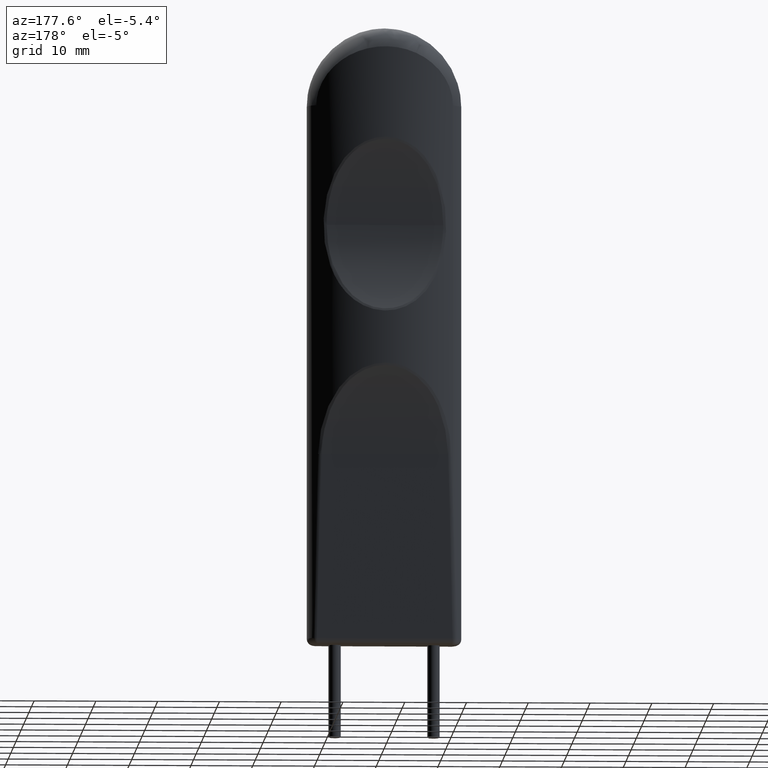
[diagram: clean part render]
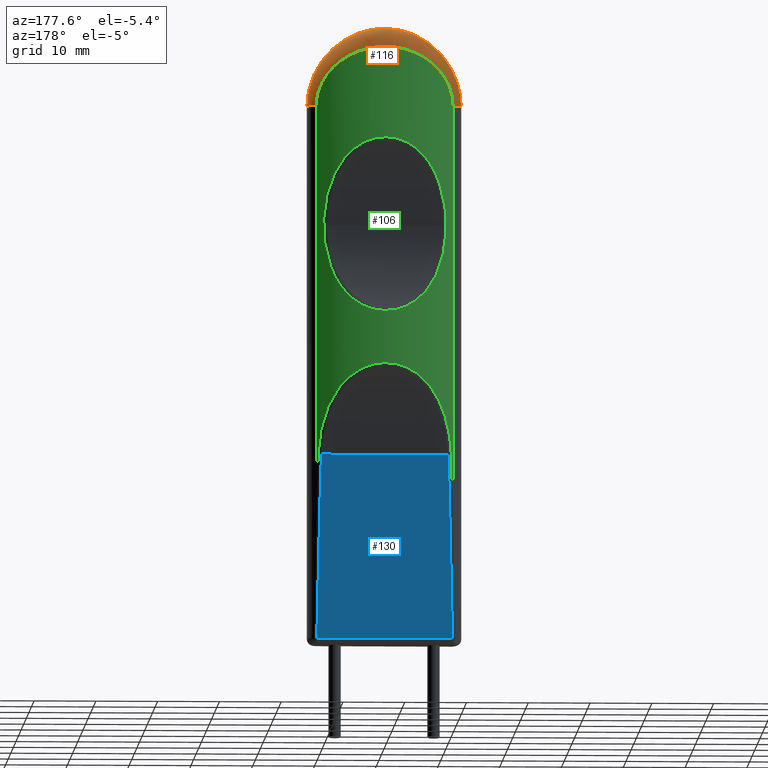
[diagram: same view with three faces highlighted in distinct colors, each labeled with its STEP entity id]
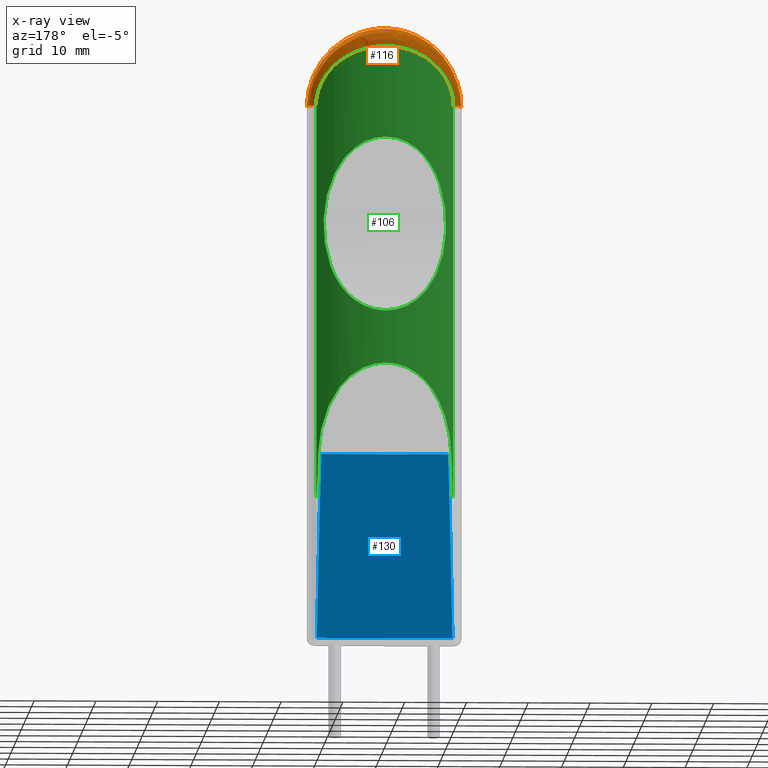
[diagram: x-ray of the same camera — body ghosted, the three highlighted faces saturated]
A machine part, auxiliary view with three faces highlighted in distinct colors.
The next image is the same camera in x-ray (body ghosted, the three faces saturated) — at least one of them is partly hidden behind the body in this view.
Their STEP definitions:

[orange] entity #116 — the highlighted face is a freeform B-spline surface patch.
#116=ADVANCED_FACE('NONE',(#263),#264,.T.);
#263=FACE_OUTER_BOUND('',#752,.T.);
#264=(B_SPLINE_SURFACE(3,2,((#754,#755,#756),(#757,#758,#759),(#760,#761,#762),(#763,#764,#765),(#766,#767,#768),(#769,#770,#771),(#772,#773,#774),(#775,#776,#777),(#778,#779,#780),(#781,#782,#783),(#784,#785,#786),(#787,#788,#789),(#790,#791,#792),(#793,#794,#795),(#796,#797,#798),(#799,#800,#801),(#802,#803,#804),(#805,#806,#807),(#808,#809,#810),(#811,#812,#813),(#814,#815,#816),(#817,#818,#819),(#820,#821,#822),(#823,#824,#825),(#826,#827,#828),(#829,#830,#831),(#832,#833,#834),(#835,#836,#837),(#838,#839,#840),(#841,#842,#843),(#844,#845,#846),(#847,#848,#849),(#850,#851,#852),(#853,#854,#855),(#856,#857,#858),(#859,#860,#861),(#862,#863,#864),(#865,#866,#867),(#868,#869,#870),(#871,#872,#873),(#874,#875,#876),(#877,#878,#879),(#880,#881,#882),(#883,#884,#885),(#886,#887,#888),(#889,#890,#891),(#892,#893,#894),(#895,#896,#897),(#898,#899,#900),(#901,#902,#903)),.UNSPECIFIED.,.F.,.F.,.F.)B_SPLINE_SURFACE_WITH_KNOTS((4,2,2,2,2,2,2,2,2,2,2,2,2,2,2,2,2,2,2,2,2,2,2,2,4),(3,3),(4.33680868994202E-019,0.00185581353227993,0.0027837202984199,0.00371162706455987,0.0055674405968398,0.00742325412911973,0.0083511608952597,0.00927906766139967,0.0111348811936796,0.0120627879598196,0.0129906947259595,0.0148465082582395,0.0157744150243794,0.0167023217905194,0.0176302285566594,0.0185581353227993,0.0204139488550793,0.0213418556212192,0.0222697623873592,0.0231976691534992,0.0241255759196391,0.0259813894519191,0.026909296218059,0.027837202984199,0.0296930165164789),(0.0,1.0),.UNSPECIFIED.)RATIONAL_B_SPLINE_SURFACE(((1.0,0.881354477089505,1.0),(1.0,0.881350704842463,1.0),(1.0,0.879210961076711,1.0),(1.0,0.873111829568949,1.0),(1.0,0.870596192241215,1.0),(1.0,0.864636514222427,1.0),(1.0,0.861232134745143,1.0),(1.0,0.8499715736576,1.0),(1.0,0.841043785469857,1.0),(1.0,0.821084455046986,1.0),(1.0,0.810274152130937,1.0),(1.0,0.793692625480911,1.0),(1.0,0.788097253600619,1.0),(1.0,0.776910120393579,1.0),(1.0,0.771299581266812,1.0),(1.0,0.755057765443363,1.0),(1.0,0.744904365497372,1.0),(1.0,0.731727931150032,1.0),(1.0,0.727680122794906,1.0),(1.0,0.720479977009014,1.0),(1.0,0.717373261118113,1.0),(1.0,0.709842852193457,1.0),(1.0,0.707151779630925,1.0),(1.0,0.707085124523978,1.0),(1.0,0.707736348010405,1.0),(1.0,0.71031336503987,1.0),(1.0,0.712232371543387,1.0),(1.0,0.717208710696827,1.0),(1.0,0.72026596900322,1.0),(1.0,0.727388720255791,1.0),(1.0,0.731474240029753,1.0),(1.0,0.744725050866888,1.0),(1.0,0.754930593230877,1.0),(1.0,0.771213155948768,1.0),(1.0,0.776825137060805,1.0),(1.0,0.788013807653119,1.0),(1.0,0.793611776311477,1.0),(1.0,0.804674534809966,1.0),(1.0,0.810139712143041,1.0),(1.0,0.820810814764776,1.0),(1.0,0.82603700838565,1.0),(1.0,0.841000951242173,1.0),(1.0,0.849902344181396,1.0),(1.0,0.861119366720008,1.0),(1.0,0.864502309306318,1.0),(1.0,0.870452828757397,1.0),(1.0,0.873025812735064,1.0),(1.0,0.879205377223568,1.0),(1.0,0.881351061532081,1.0),(1.0,0.881354477089505,1.0)))BOUNDED_SURFACE()REPRESENTATION_ITEM('')GEOMETRIC_REPRESENTATION_ITEM()SURFACE());
#752=EDGE_LOOP('',(#2164,#2165,#2166,#2167,#2168));
#754=CARTESIAN_POINT('',(-12.5,1.58676851449892E-015,-12.5));
#755=CARTESIAN_POINT('',(-12.5,1.71538005574047,-12.5));
#756=CARTESIAN_POINT('',(-11.0714285714286,2.66496544373966,-12.5));
#757=CARTESIAN_POINT('',(-12.5,1.05939245184682E-009,-11.6547701359437));
#758=CARTESIAN_POINT('',(-12.4999999982459,1.71538005713813,-11.7318884724107));
#759=CARTESIAN_POINT('',(-11.071428569529,2.66496544500235,-11.8711489811357));
#760=CARTESIAN_POINT('',(-12.4151995764906,0.0424844794774554,-10.8281563662107));
#761=CARTESIAN_POINT('',(-12.4302795858096,1.77175492873632,-10.9771605651087));
#762=CARTESIAN_POINT('',(-10.9963196245076,2.71554220449848,-11.2561483364682));
#763=CARTESIAN_POINT('',(-12.1692509058882,0.160671831186035,-9.61384463264329));
#764=CARTESIAN_POINT('',(-12.2282397263254,1.92873670906657,-9.86755203782147));
#765=CARTESIAN_POINT('',(-10.7784793739787,2.85624143350878,-10.3527004066829));
#766=CARTESIAN_POINT('',(-12.0673080935622,0.209128735203996,-9.21335388186144));
#767=CARTESIAN_POINT('',(-12.1438914017037,1.99359221154092,-9.49891680751395));
#768=CARTESIAN_POINT('',(-10.6881871685343,2.91392822336744,-10.0547352880568));
#769=CARTESIAN_POINT('',(-11.822944708723,0.322459750503041,-8.42079103926923));
#770=CARTESIAN_POINT('',(-11.9408800821349,2.14604370507022,-8.76586950761681));
#771=CARTESIAN_POINT('',(-10.4717510277754,3.04884609947737,-9.46506853326438));
#772=CARTESIAN_POINT('',(-11.6821311168871,0.386564613739911,-8.03418233428805));
#773=CARTESIAN_POINT('',(-11.8231278397489,2.23290365436741,-8.40584056115617));
#774=CARTESIAN_POINT('',(-10.3470304173024,3.12516141207975,-9.17743165680766));
#775=CARTESIAN_POINT('',(-11.2091556384823,0.595407860840227,-6.90824810149925));
#776=CARTESIAN_POINT('',(-11.4234126019707,2.51921137438881,-7.34531849405002));
#777=CARTESIAN_POINT('',(-9.92810928082236,3.37378432648812,-8.33973658732074));
#778=CARTESIAN_POINT('',(-10.8260093833532,0.757053513654279,-6.19904126623899));
#779=CARTESIAN_POINT('',(-11.0951633972024,2.74422821262874,-6.66760404331574));
#780=CARTESIAN_POINT('',(-9.58875116785294,3.566219625628,-7.81208670192692));
#781=CARTESIAN_POINT('',(-9.92344069771056,1.10441481350851,-4.85605567445496));
#782=CARTESIAN_POINT('',(-10.3071505089861,3.23839294064293,-5.35727304509205));
#783=CARTESIAN_POINT('',(-8.78933318966067,3.97974498466417,-6.81290542194938));
#784=CARTESIAN_POINT('',(-9.41383612047129,1.2861418177226,-4.23764700089086));
#785=CARTESIAN_POINT('',(-9.8513283215439,3.50389871335815,-4.73809721061688));
#786=CARTESIAN_POINT('',(-8.33796913495253,4.19608665435345,-6.3528093685895));
#787=CARTESIAN_POINT('',(-8.56854005459968,1.55407138276584,-3.39015267806505));
#788=CARTESIAN_POINT('',(-9.07886637849408,3.9046656004902,-3.87025024319391));
#789=CARTESIAN_POINT('',(-7.58927833423502,4.51505042370317,-5.72227359251704));
#790=CARTESIAN_POINT('',(-8.27284715955683,1.64276868278538,-3.12065837077217));
#791=CARTESIAN_POINT('',(-8.80266274428491,4.04043602913388,-3.58793573150463));
#792=CARTESIAN_POINT('',(-7.32737891273107,4.62064244651653,-5.52176982766771));
#793=CARTESIAN_POINT('',(-7.65222073565852,1.8167696819489,-2.60780270435777));
#794=CARTESIAN_POINT('',(-8.21326965687462,4.31143064062209,-3.04153876419844));
#795=CARTESIAN_POINT('',(-6.77768122303109,4.82778649421789,-5.14020521222897));
#796=CARTESIAN_POINT('',(-7.32597117364659,1.90233994576665,-2.36376424112101));
#797=CARTESIAN_POINT('',(-7.8982872704888,4.44706725533932,-2.77699213547001));
#798=CARTESIAN_POINT('',(-6.48871732504655,4.92965585501699,-4.95864059548055));
#799=CARTESIAN_POINT('',(-6.32152689740802,2.14566844227195,-1.68608240867082));
#800=CARTESIAN_POINT('',(-6.90385699079049,4.84274414378981,-2.02361362999005));
#801=CARTESIAN_POINT('',(-5.59906668092798,5.21933263761983,-4.45444531187806));
#802=CARTESIAN_POINT('',(-5.61268327555714,2.29173194844584,-1.30125114143163));
#803=CARTESIAN_POINT('',(-6.18366855982941,5.08725406425814,-1.5832792311975));
#804=CARTESIAN_POINT('',(-4.97123375839533,5.39321776242645,-4.16813084874457));
#805=CARTESIAN_POINT('',(-4.48647446674037,2.47647456205975,-0.825772220547606));
#806=CARTESIAN_POINT('',(-5.00330486679059,5.40581572894882,-1.02312557590484));
#807=CARTESIAN_POINT('',(-3.97373452766197,5.61314944663754,-3.8143745323277));
#808=CARTESIAN_POINT('',(-4.10051030996055,2.53232599362748,-0.684378236175469));
#809=CARTESIAN_POINT('',(-4.5899443069602,5.50431565801735,-0.852763515560458));
#810=CARTESIAN_POINT('',(-3.6318805603289,5.67963924515758,-3.70917740726896));
#811=CARTESIAN_POINT('',(-3.30575187608465,2.63062766039192,-0.437864741198617));
#812=CARTESIAN_POINT('',(-3.72511433293295,5.68034856474802,-0.551198950723308));
#813=CARTESIAN_POINT('',(-2.92795166159685,5.79666503996387,-3.52577136789734));
#814=CARTESIAN_POINT('',(-2.90119889070772,2.67246242063357,-0.334282214862693));
#815=CARTESIAN_POINT('',(-3.27903269918535,5.75632824468276,-0.42268118854885));
#816=CARTESIAN_POINT('',(-2.56963330316665,5.84646832533763,-3.44870596793834));
#817=CARTESIAN_POINT('',(-1.68331492420185,2.77320714388715,-0.0861759400997287));
#818=CARTESIAN_POINT('',(-1.91464316860528,5.94206398892687,-0.110205493307298));
#819=CARTESIAN_POINT('',(-1.49093607578488,5.9664025200131,-3.26411489927319));
#820=CARTESIAN_POINT('',(-0.85880907576333,2.80833959172239,-0.00143697773054034));
#821=CARTESIAN_POINT('',(-0.980452891961259,6.0078196533511,-0.00184413982428408));
#822=CARTESIAN_POINT('',(-0.760659467105444,6.00822686208451,-3.20106911087103));
#823=CARTESIAN_POINT('',(0.39764006061438,2.80921625318119,0.000691582658870562));
#824=CARTESIAN_POINT('',(0.45400558140523,6.00946653738431,0.000887623582717121));
#825=CARTESIAN_POINT('',(0.352195482258841,6.00927050723675,-3.19948546278205));
#826=CARTESIAN_POINT('',(0.821803487467541,2.80066958287997,-0.0200232263054182));
#827=CARTESIAN_POINT('',(0.937418273408349,5.99342268005277,-0.0256782892680005));
#828=CARTESIAN_POINT('',(0.727883088881617,5.99909589981109,-3.21489728064632));
#829=CARTESIAN_POINT('',(1.65477910811116,2.76663301974319,-0.102948441370066));
#830=CARTESIAN_POINT('',(1.88309094302562,5.9298368828133,-0.13151106146642));
#831=CARTESIAN_POINT('',(1.4656614957738,5.95857618126723,-3.27659364010424));
#832=CARTESIAN_POINT('',(2.0659739332485,2.74122849006832,-0.164953168578566));
#833=CARTESIAN_POINT('',(2.3464551794631,5.88268217874846,-0.210136022860053));
#834=CARTESIAN_POINT('',(1.82986262659401,5.92833269403709,-3.32272515751087));
#835=CARTESIAN_POINT('',(2.87817096796914,2.67467398119413,-0.328814334447042));
#836=CARTESIAN_POINT('',(3.25351672649427,5.76036342394839,-0.415865783680011));
#837=CARTESIAN_POINT('',(2.5492371430559,5.84910113542134,-3.44463786474018));
#838=CARTESIAN_POINT('',(3.27917233980773,2.6335214102971,-0.430673103360799));
#839=CARTESIAN_POINT('',(3.69591501228261,5.68558315580769,-0.542311698066729));
#840=CARTESIAN_POINT('',(2.90440978674734,5.80010997998556,-3.52042078881551));
#841=CARTESIAN_POINT('',(4.07110028699484,2.53633055688612,-0.674275268494996));
#842=CARTESIAN_POINT('',(4.55825522252091,5.51141980224759,-0.84051932981209));
#843=CARTESIAN_POINT('',(3.60583168270637,5.68440658271188,-3.7016607998452));
#844=CARTESIAN_POINT('',(4.46334436880627,2.4799993101419,-0.816785590402317));
#845=CARTESIAN_POINT('',(4.97864255244341,5.4120020200047,-1.01234980874918));
#846=CARTESIAN_POINT('',(3.95324786947354,5.61734557533954,-3.80768847955047));
#847=CARTESIAN_POINT('',(5.60014109569023,2.2943079734854,-1.29445729609209));
#848=CARTESIAN_POINT('',(6.17075685666689,5.09162648577381,-1.57539786021376));
#849=CARTESIAN_POINT('',(4.96012497054966,5.39628445883656,-4.16307622771022));
#850=CARTESIAN_POINT('',(6.31315294546806,2.14753703512286,-1.68101870677637));
#851=CARTESIAN_POINT('',(6.89542367941397,4.84583975627154,-2.0178783698254));
#852=CARTESIAN_POINT('',(5.59164975202046,5.22155715296242,-4.45067791774382));
#853=CARTESIAN_POINT('',(7.32087747686154,1.90365280939284,-2.36003860693838));
#854=CARTESIAN_POINT('',(7.89333741181982,4.44916224775175,-2.7729265344908));
#855=CARTESIAN_POINT('',(6.48420576506013,4.93121878788337,-4.95586872361106));
#856=CARTESIAN_POINT('',(7.64735618298445,1.8180747475955,-2.60403804210683));
#857=CARTESIAN_POINT('',(8.20859838685541,4.31348741833033,-3.03748063756583));
#858=CARTESIAN_POINT('',(6.77337261923828,4.82934014379413,-5.13740430350893));
#859=CARTESIAN_POINT('',(8.26836555395092,1.64408306081502,-3.11670363210577));
#860=CARTESIAN_POINT('',(8.79845358252963,4.0424597161648,-3.58376913119982));
#861=CARTESIAN_POINT('',(7.32340949061877,4.62220718226915,-5.51882750210525));
#862=CARTESIAN_POINT('',(8.56432032415289,1.55536192905462,-3.38617394607395));
#863=CARTESIAN_POINT('',(9.07494397731242,3.90663069267071,-3.86610341434167));
#864=CARTESIAN_POINT('',(7.58554085870149,4.51658678833073,-5.71931341591042));
#865=CARTESIAN_POINT('',(9.12847465150288,1.37663783207852,-3.95129492304309));
#866=CARTESIAN_POINT('',(9.59410121621046,3.63742068344218,-4.4488544117113));
#867=CARTESIAN_POINT('',(8.08522040545078,4.30382000525947,-6.13976342271265));
#868=CARTESIAN_POINT('',(9.39667211743717,1.28662922465869,-4.24694446899944));
#869=CARTESIAN_POINT('',(9.83730852891626,3.50395307471976,-4.74912093467417));
#870=CARTESIAN_POINT('',(8.32276673292686,4.19666690210365,-6.35972668484369));
#871=CARTESIAN_POINT('',(9.90567052107101,1.10759479316285,-4.8653379899052));
#872=CARTESIAN_POINT('',(10.2926988243052,3.24233932648846,-5.36827872298259));
#873=CARTESIAN_POINT('',(8.77359388975181,3.98353067325846,-6.81981146458135));
#874=CARTESIAN_POINT('',(10.147369119002,1.01821519634579,-5.18943671583498));
#875=CARTESIAN_POINT('',(10.5062166235418,3.11353191811713,-5.68846601922286));
#876=CARTESIAN_POINT('',(8.98766979121176,3.8771263922965,-7.06094091668076));
#877=CARTESIAN_POINT('',(10.8241280094678,0.757815042935291,-6.19587475450557));
#878=CARTESIAN_POINT('',(11.0935465750186,2.74529328344625,-6.66456404873635));
#879=CARTESIAN_POINT('',(9.5870848081943,3.56712620808655,-7.80973081715307));
#880=CARTESIAN_POINT('',(11.2061707712024,0.596658222186654,-6.9029346324606));
#881=CARTESIAN_POINT('',(11.4208845130899,2.52093246621259,-7.34029894968574));
#882=CARTESIAN_POINT('',(9.92546554113323,3.37527285190629,-8.33578336639151));
#883=CARTESIAN_POINT('',(11.6774323027921,0.388672528734882,-8.02211815316966));
#884=CARTESIAN_POINT('',(11.819195078088,2.23576402139357,-8.39458951718285));
#885=CARTESIAN_POINT('',(10.3428686105817,3.12767083468993,-9.16845590603782));
#886=CARTESIAN_POINT('',(11.817402402123,0.32499185758378,-8.40502184789766));
#887=CARTESIAN_POINT('',(11.9362590753779,2.14946415044874,-8.75122598282044));
#888=CARTESIAN_POINT('',(10.4668421282774,3.05186051262601,-9.45333625471238));
#889=CARTESIAN_POINT('',(12.0614675217911,0.21187404110825,-9.19230490814583));
#890=CARTESIAN_POINT('',(12.1390567894194,1.99726988021943,-9.47952396332998));
#891=CARTESIAN_POINT('',(10.6830140900465,2.91719644472477,-10.039074851784));
#892=CARTESIAN_POINT('',(12.1657715375485,0.162332612533008,-9.59870926830839));
#893=CARTESIAN_POINT('',(12.2253659228344,1.93095529221393,-9.8536422719306));
#894=CARTESIAN_POINT('',(10.7753976476619,2.85821855416448,-10.3414396956307));
#895=CARTESIAN_POINT('',(12.4149953962294,0.0426044856736884,-10.8231489731924));
#896=CARTESIAN_POINT('',(12.4301041041006,1.77191910337873,-10.9725559009975));
#897=CARTESIAN_POINT('',(10.9961387792797,2.71568506900872,-11.2524228360368));
#898=CARTESIAN_POINT('',(12.5,8.82967321348278E-010,-11.6538734095813));
#899=CARTESIAN_POINT('',(12.4999999985487,1.71538005690491,-11.7310663009534));
#900=CARTESIAN_POINT('',(11.0714285698534,2.66496544478672,-11.8704818167416));
#901=CARTESIAN_POINT('',(12.5,1.04787643248766E-015,-12.5));
#902=CARTESIAN_POINT('',(12.5,1.71538005574047,-12.5));
#903=CARTESIAN_POINT('',(11.0714285714286,2.66496544373966,-12.5));
#2164=ORIENTED_EDGE('',*,*,#2399,.F.);
#2165=ORIENTED_EDGE('',*,*,#2442,.F.);
#2166=ORIENTED_EDGE('',*,*,#2479,.F.);
#2167=ORIENTED_EDGE('',*,*,#2465,.F.);
#2168=ORIENTED_EDGE('',*,*,#2460,.F.);
#2399=EDGE_CURVE('NONE',#2570,#2572,#2573,.T.);
#2442=EDGE_CURVE('NONE',#2642,#2570,#2644,.T.);
#2460=EDGE_CURVE('NONE',#2572,#2664,#2671,.T.);
#2465=EDGE_CURVE('NONE',#2664,#2646,#2677,.T.);
#2479=EDGE_CURVE('NONE',#2646,#2642,#2696,.T.);
#2570=VERTEX_POINT('NONE',#2890);
#2572=VERTEX_POINT('NONE',#2893);
#2573=CIRCLE('',#2894,3.2);
#2642=VERTEX_POINT('NONE',#3212);
#2644=B_SPLINE_CURVE_WITH_KNOTS('',3,(#3215,#3216,#3217,#3218,#3219,#3220,#3221,#3222,#3223,#3224,#3225,#3226,#3227,#3228,#3229,#3230,#3231,#3232,#3233,#3234,#3235,#3236,#3237,#3238,#3239,#3240),.UNSPECIFIED.,.F.,.F.,(4,2,2,2,2,2,2,2,2,2,2,2,4),(0.0197860397410586,0.021020671858098,0.0222553039751374,0.0234899360921769,0.0247245682092163,0.0271938324432952,0.0284284645603346,0.0296630966773741,0.032132360911453,0.0333669930284924,0.0346016251455318,0.0370708893796107,0.0395401536136896),.UNSPECIFIED.);
#2646=VERTEX_POINT('NONE',#3242);
#2664=VERTEX_POINT('NONE',#3274);
#2671=B_SPLINE_CURVE_WITH_KNOTS('',3,(#3349,#3350,#3351,#3352,#3353,#3354,#3355,#3356,#3357,#3358,#3359,#3360,#3361,#3362,#3363,#3364,#3365,#3366,#3367,#3368,#3369,#3370,#3371,#3372,#3373,#3374,#3375,#3376,#3377,#3378,#3379,#3380,#3381,#3382,#3383,#3384,#3385,#3386,#3387,#3388,#3389,#3390,#3391,#3392,#3393,#3394),.UNSPECIFIED.,.F.,.F.,(4,2,2,2,2,2,2,2,2,2,2,2,2,2,2,2,2,2,2,2,2,2,4),(0.0,0.00204640767227597,0.00306961150841395,0.00409281534455193,0.0061392230168279,0.00818563068910386,0.00920883452524184,0.0102320383613798,0.0122784460336558,0.0143248537059318,0.0153480575420697,0.0163712613782077,0.0184176690504837,0.0194408728866217,0.0204640767227596,0.0225104843950356,0.0235336882311736,0.0245568920673116,0.0266032997395875,0.0286497074118635,0.0296729112480015,0.0306961150841394,0.0327425227564154),.UNSPECIFIED.);
#2677=CIRCLE('',#3463,3.2);
#2696=B_SPLINE_CURVE_WITH_KNOTS('',3,(#3681,#3682,#3683,#3684,#3685,#3686,#3687,#3688,#3689,#3690,#3691,#3692,#3693,#3694,#3695,#3696,#3697,#3698,#3699,#3700,#3701,#3702,#3703,#3704,#3705,#3706),.UNSPECIFIED.,.F.,.F.,(4,2,2,2,2,2,2,2,2,2,2,2,4),(5.21935668822587E-018,0.00247325496763233,0.00370988245144849,0.00494650993526466,0.00741976490289698,0.00865639238671314,0.00989301987052928,0.0111296473543455,0.0123662748381616,0.0148395298057939,0.0160761572896101,0.0173127847734262,0.0197860397410586),.UNSPECIFIED.);
#2890=CARTESIAN_POINT('',(-12.5,0.0,-12.5));
#2893=CARTESIAN_POINT('',(-11.0714285714286,2.66496544373966,-12.5));
#2894=AXIS2_PLACEMENT_3D('',#4074,#4075,#4076);
#3212=CARTESIAN_POINT('',(3.55082222120991E-012,2.80893142036678,-4.09622530904424E-016));
#3215=CARTESIAN_POINT('',(3.55082222120991E-012,2.80893142036678,-4.09622530904424E-016));
#3216=CARTESIAN_POINT('',(-0.413308284993841,2.80893142036683,1.17672075787093E-013));
#3217=CARTESIAN_POINT('',(-0.831400849590791,2.80036901171727,-0.0207539788876427));
#3218=CARTESIAN_POINT('',(-1.65867163741398,2.76638086905301,-0.103564341820375));
#3219=CARTESIAN_POINT('',(-2.06681969176899,2.74112687122532,-0.165205603277632));
#3220=CARTESIAN_POINT('',(-2.87255766366623,2.67516608020174,-0.327600527561954));
#3221=CARTESIAN_POINT('',(-3.2701465541511,2.63445653892948,-0.428357496196248));
#3222=CARTESIAN_POINT('',(-4.05488388556027,2.53848785975932,-0.668840804896114));
#3223=CARTESIAN_POINT('',(-4.44320507518781,2.48303228999298,-0.809063881967086));
#3224=CARTESIAN_POINT('',(-5.58452597557486,2.2973536265097,-1.28646780659483));
#3225=CARTESIAN_POINT('',(-6.29929968903059,2.15053869935606,-1.6729679726913));
#3226=CARTESIAN_POINT('',(-7.30755575989421,1.90704714086536,-2.35043948788006));
#3227=CARTESIAN_POINT('',(-7.6329047177364,1.821990068344,-2.59268706779979));
#3228=CARTESIAN_POINT('',(-8.26202011739792,1.6459901790354,-3.11090486008922));
#3229=CARTESIAN_POINT('',(-8.56254797110862,1.55593539860486,-3.38433426350523));
#3230=CARTESIAN_POINT('',(-9.41708608708865,1.28518168698358,-4.2405298029156));
#3231=CARTESIAN_POINT('',(-9.92762882017001,1.10290313937119,-4.86130424188412));
#3232=CARTESIAN_POINT('',(-10.6053805042701,0.841913557836247,-5.87125380794533));
#3233=CARTESIAN_POINT('',(-10.8172502696627,0.756679562549936,-6.22285945184944));
#3234=CARTESIAN_POINT('',(-11.2023977657068,0.596653667017583,-6.93927332476757));
#3235=CARTESIAN_POINT('',(-11.3767026943026,0.521494418943382,-7.30530026149843));
#3236=CARTESIAN_POINT('',(-11.8456289622034,0.314231576413588,-8.42714439725988));
#3237=CARTESIAN_POINT('',(-12.0869011775545,0.200248231481828,-9.20646392589976));
#3238=CARTESIAN_POINT('',(-12.4165145045715,0.0418482586161758,-10.8354497589036));
#3239=CARTESIAN_POINT('',(-12.5,3.73202716560245E-015,-11.6637734110109));
#3240=CARTESIAN_POINT('',(-12.5,0.0,-12.5));
#3242=CARTESIAN_POINT('',(12.5,0.0,-12.5));
#3274=CARTESIAN_POINT('',(11.0714285714286,2.66496544373966,-12.5));
#3349=CARTESIAN_POINT('',(-11.0714285714286,2.66496544373966,-12.5));
#3350=CARTESIAN_POINT('',(-11.0714285714286,2.66496544373966,-11.8051826068772));
#3351=CARTESIAN_POINT('',(-10.9800309586937,2.72663318355155,-11.1317201775837));
#3352=CARTESIAN_POINT('',(-10.7194187735874,2.89397566610765,-10.1494912345771));
#3353=CARTESIAN_POINT('',(-10.6108359074016,2.96274668705124,-9.82524777048519));
#3354=CARTESIAN_POINT('',(-10.3600066610064,3.11717366597958,-9.20366468646456));
#3355=CARTESIAN_POINT('',(-10.2173801899931,3.20308190051848,-8.90407788713572));
#3356=CARTESIAN_POINT('',(-9.74159628506634,3.47993529944141,-8.03500851067933));
#3357=CARTESIAN_POINT('',(-9.357273389845,3.69138467995879,-7.49231851499856));
#3358=CARTESIAN_POINT('',(-8.50330111213605,4.11753679919988,-6.51343234098071));
#3359=CARTESIAN_POINT('',(-8.03086657843206,4.33422419090656,-6.07099898398116));
#3360=CARTESIAN_POINT('',(-7.25542021318323,4.6485846041515,-5.46908089958674));
#3361=CARTESIAN_POINT('',(-6.98482979757677,4.75189359898118,-5.27844488193033));
#3362=CARTESIAN_POINT('',(-6.43075075898877,4.94915114469552,-4.92399913264221));
#3363=CARTESIAN_POINT('',(-6.14624004891271,5.04355623608555,-4.75929343145252));
#3364=CARTESIAN_POINT('',(-5.27045441310733,5.31165518504565,-4.30097871095059));
#3365=CARTESIAN_POINT('',(-4.65712351444689,5.47028779897741,-4.04280808027427));
#3366=CARTESIAN_POINT('',(-3.36753930047215,5.73436856593794,-3.62160027997033));
#3367=CARTESIAN_POINT('',(-2.70994053444678,5.83589476737445,-3.46478411684757));
#3368=CARTESIAN_POINT('',(-1.70646001753712,5.93883502084872,-3.30668652695529));
#3369=CARTESIAN_POINT('',(-1.36900445886369,5.96493462604659,-3.26690217172474));
#3370=CARTESIAN_POINT('',(-0.688035299807708,6.0000005408443,-3.21353208575617));
#3371=CARTESIAN_POINT('',(-0.343193365098504,6.00896186324155,-3.19995380539221));
#3372=CARTESIAN_POINT('',(0.691695328191619,6.00887029977382,-3.20009274557156));
#3373=CARTESIAN_POINT('',(1.37146809206934,5.97321979661529,-3.25387697912059));
#3374=CARTESIAN_POINT('',(2.37658816321067,5.87008099628209,-3.41228063903126));
#3375=CARTESIAN_POINT('',(2.70919185118999,5.82740394972493,-3.47812270105786));
#3376=CARTESIAN_POINT('',(3.36948633458233,5.72588188752931,-3.63646849119753));
#3377=CARTESIAN_POINT('',(3.6984510729581,5.66671546404378,-3.72948810798035));
#3378=CARTESIAN_POINT('',(4.65982225966382,5.46950982636409,-4.04408673663836));
#3379=CARTESIAN_POINT('',(5.27178957756086,5.31130625700731,-4.30154766773417));
#3380=CARTESIAN_POINT('',(6.14826061550347,5.04290765563912,-4.76041600966703));
#3381=CARTESIAN_POINT('',(6.43346074346573,4.94824908364783,-4.92557462447238));
#3382=CARTESIAN_POINT('',(6.98971281832406,4.75009161406185,-5.28172882704073));
#3383=CARTESIAN_POINT('',(7.25892251984904,4.64720203811576,-5.47168588217278));
#3384=CARTESIAN_POINT('',(8.03080550725062,4.33417395581984,-6.07118028434574));
#3385=CARTESIAN_POINT('',(8.50223346382707,4.11803509615446,-6.51238998289459));
#3386=CARTESIAN_POINT('',(9.35602930906084,3.69203989658901,-7.49071148896334));
#3387=CARTESIAN_POINT('',(9.74076924807053,3.48038933672831,-8.03386306462608));
#3388=CARTESIAN_POINT('',(10.2161335483038,3.20382083961166,-8.90161910806641));
#3389=CARTESIAN_POINT('',(10.3586474693313,3.1179959106947,-9.2007082068486));
#3390=CARTESIAN_POINT('',(10.6093414524098,2.96368117004646,-9.82113725586682));
#3391=CARTESIAN_POINT('',(10.7181351517869,2.89479336239884,-10.1452258024754));
#3392=CARTESIAN_POINT('',(10.9799349847121,2.72670777850852,-11.1302222605375));
#3393=CARTESIAN_POINT('',(11.0714285714286,2.66496544373967,-11.8048802079857));
#3394=CARTESIAN_POINT('',(11.0714285714286,2.66496544373966,-12.5));
#3463=AXIS2_PLACEMENT_3D('',#4153,#4154,#4155);
#3681=CARTESIAN_POINT('',(12.5,0.0,-12.5));
#3682=CARTESIAN_POINT('',(12.5,5.89280821404817E-015,-11.6626659766315));
#3683=CARTESIAN_POINT('',(12.4167438163012,0.0417096311885046,-10.8418765127654));
#3684=CARTESIAN_POINT('',(12.1738817411403,0.158462396349905,-9.63376056872866));
#3685=CARTESIAN_POINT('',(12.0731068863402,0.206392177408659,-9.23492381346142));
#3686=CARTESIAN_POINT('',(11.8312059215608,0.318672884344765,-8.44497856546697));
#3687=CARTESIAN_POINT('',(11.6904889753263,0.382802876904685,-8.0559850578219));
#3688=CARTESIAN_POINT('',(11.2179550595577,0.591659452391733,-6.92553236300911));
#3689=CARTESIAN_POINT('',(10.8339634217629,0.7538578045937,-6.21219767213494));
#3690=CARTESIAN_POINT('',(10.1545125216255,1.01555071762408,-5.19923422970231));
#3691=CARTESIAN_POINT('',(9.90995369320173,1.10607076819686,-4.87066384275329));
#3692=CARTESIAN_POINT('',(9.39542508554648,1.28708521886404,-4.24530800916481));
#3693=CARTESIAN_POINT('',(9.12441521976252,1.37800348204707,-3.94680195889798));
#3694=CARTESIAN_POINT('',(8.55499825765523,1.55823364436026,-3.37727263125432));
#3695=CARTESIAN_POINT('',(8.256591421158,1.64755101379605,-3.10625081176909));
#3696=CARTESIAN_POINT('',(7.63158787459571,1.82231589327538,-2.59178662827387));
#3697=CARTESIAN_POINT('',(7.30344751019806,1.90813489316782,-2.34732990057878));
#3698=CARTESIAN_POINT('',(6.28519590014621,2.15375031482482,-1.66420121890477));
#3699=CARTESIAN_POINT('',(5.57014420391242,2.29983430826674,-1.28004576127746));
#3700=CARTESIAN_POINT('',(4.44240970739743,2.48309046160075,-0.80893649472073));
#3701=CARTESIAN_POINT('',(4.05724265751737,2.53820175420955,-0.669557358212105));
#3702=CARTESIAN_POINT('',(3.2674394417513,2.63478524339037,-0.427534196482478));
#3703=CARTESIAN_POINT('',(2.86212680454134,2.67618886365596,-0.325070823339704));
#3704=CARTESIAN_POINT('',(1.64693804261609,2.77515422122761,-0.081454340718605));
#3705=CARTESIAN_POINT('',(0.827952517134398,2.80893142036668,-2.347881215017E-013));
#3706=CARTESIAN_POINT('',(3.55082222120991E-012,2.80893142036678,-4.09622530904424E-016));
#4074=CARTESIAN_POINT('',(-9.3,0.0,-12.5));
#4075=DIRECTION('',(0.0,0.0,-1.0));
#4076=DIRECTION('',(1.0,0.0,0.0));
#4153=CARTESIAN_POINT('',(9.3,0.0,-12.5));
#4154=DIRECTION('',(0.0,0.0,-1.0));
#4155=DIRECTION('',(1.0,8.88178419700125E-016,0.0));

[blue] entity #130 — the highlighted planar face has unit normal (0, -0.9998, 0.0197).
#130=ADVANCED_FACE('NONE',(#284),#285,.F.);
#284=FACE_OUTER_BOUND('',#1085,.T.);
#285=PLANE('',#1086);
#1085=EDGE_LOOP('',(#2212,#2213,#2214,#2215,#2216,#2217));
#1086=AXIS2_PLACEMENT_3D('',#2218,#2219,#2220);
#2212=ORIENTED_EDGE('',*,*,#2499,.T.);
#2213=ORIENTED_EDGE('',*,*,#2500,.T.);
#2214=ORIENTED_EDGE('',*,*,#2501,.T.);
#2215=ORIENTED_EDGE('',*,*,#2502,.T.);
#2216=ORIENTED_EDGE('',*,*,#2503,.T.);
#2217=ORIENTED_EDGE('',*,*,#2496,.F.);
#2218=CARTESIAN_POINT('',(15.7,2.40000000000003,-100.0));
#2219=DIRECTION('',(2.82479922016044E-015,-0.9998052183757,0.0197363955351141));
#2220=DIRECTION('',(-1.0,-2.82534954633429E-015,0.0));
#2496=EDGE_CURVE('NONE',#2719,#2720,#2721,.T.);
#2499=EDGE_CURVE('NONE',#2719,#2724,#2725,.T.);
#2500=EDGE_CURVE('NONE',#2724,#2726,#2727,.T.);
#2501=EDGE_CURVE('NONE',#2726,#2728,#2729,.T.);
#2502=EDGE_CURVE('NONE',#2728,#2730,#2731,.T.);
#2503=EDGE_CURVE('NONE',#2730,#2720,#2732,.T.);
#2719=VERTEX_POINT('NONE',#3906);
#2720=VERTEX_POINT('NONE',#3907);
#2721=LINE('',#3908,#3909);
#2724=VERTEX_POINT('NONE',#3961);
#2725=(B_SPLINE_CURVE(3,(#3963,#3964,#3965,#3966),.UNSPECIFIED.,.F.,.F.)B_SPLINE_CURVE_WITH_KNOTS((4,4),(0.5697135714619,0.586646606156945),.UNSPECIFIED.)RATIONAL_B_SPLINE_CURVE((1.0,0.999976106170732,0.999976106170732,1.0))BOUNDED_CURVE()REPRESENTATION_ITEM('')GEOMETRIC_REPRESENTATION_ITEM()CURVE());
#2726=VERTEX_POINT('NONE',#3973);
#2727=(B_SPLINE_CURVE(3,(#3975,#3976,#3977,#3978),.UNSPECIFIED.,.F.,.F.)B_SPLINE_CURVE_WITH_KNOTS((4,4),(0.586646606156944,0.869448575825256),.UNSPECIFIED.)RATIONAL_B_SPLINE_CURVE((1.0,0.993346351141324,0.993346351141324,1.0))BOUNDED_CURVE()REPRESENTATION_ITEM('')GEOMETRIC_REPRESENTATION_ITEM()CURVE());
#2728=VERTEX_POINT('NONE',#3985);
#2729=LINE('',#3986,#3987);
#2730=VERTEX_POINT('NONE',#3988);
#2731=(B_SPLINE_CURVE(3,(#3990,#3991,#3992,#3993),.UNSPECIFIED.,.F.,.F.)B_SPLINE_CURVE_WITH_KNOTS((4,4),(5.4137367313543,5.69653870102265),.UNSPECIFIED.)RATIONAL_B_SPLINE_CURVE((1.0,0.993346351141323,0.993346351141323,1.0))BOUNDED_CURVE()REPRESENTATION_ITEM('')GEOMETRIC_REPRESENTATION_ITEM()CURVE());
#2732=(B_SPLINE_CURVE(3,(#4001,#4002,#4003,#4004),.UNSPECIFIED.,.F.,.F.)B_SPLINE_CURVE_WITH_KNOTS((4,4),(5.69653870102265,5.71347173571769),.UNSPECIFIED.)RATIONAL_B_SPLINE_CURVE((1.0,0.999976106170732,0.999976106170732,1.0))BOUNDED_CURVE()REPRESENTATION_ITEM('')GEOMETRIC_REPRESENTATION_ITEM()CURVE());
#3906=CARTESIAN_POINT('',(10.2484267605776,3.00779126497201,-69.2105441785954));
#3907=CARTESIAN_POINT('',(-10.2484267605777,3.00779126497195,-69.2105441785954));
#3908=CARTESIAN_POINT('',(15.7,3.00779126497202,-69.2105441785954));
#3909=VECTOR('',#4165,1000.0);
#3961=CARTESIAN_POINT('',(10.5178571428571,2.83196896094672,-78.1173405973523));
#3963=CARTESIAN_POINT('',(10.2484267605776,3.00779126497201,-69.2105441785954));
#3964=CARTESIAN_POINT('',(10.3387320218151,2.94994491857788,-72.1409211507185));
#3965=CARTESIAN_POINT('',(10.4285442952008,2.89133608351329,-75.1099242311568));
#3966=CARTESIAN_POINT('',(10.5178571428571,2.83196896094672,-78.1173405973523));
#3973=CARTESIAN_POINT('',(10.9807411453638,2.41935063937538,-99.0197363955351));
#3975=CARTESIAN_POINT('',(10.5178571428571,2.83196896094672,-78.1173405973523));
#3976=CARTESIAN_POINT('',(10.6911483638903,2.71678059299355,-83.9525464823811));
#3977=CARTESIAN_POINT('',(10.8464765304709,2.57831988352827,-90.9666813388242));
#3978=CARTESIAN_POINT('',(10.9807411453638,2.41935063937538,-99.0197363955351));
#3985=CARTESIAN_POINT('',(-10.9807411453639,2.41935063937532,-99.0197363955351));
#3986=CARTESIAN_POINT('',(15.7,2.4193506393754,-99.0197363955351));
#3987=VECTOR('',#4166,1000.0);
#3988=CARTESIAN_POINT('',(-10.5178571428572,2.83196896094672,-78.1173405973493));
#3990=CARTESIAN_POINT('',(-10.9807411453639,2.41935063937532,-99.0197363955351));
#3991=CARTESIAN_POINT('',(-10.8464765304709,2.57831988352824,-90.9666813388229));
#3992=CARTESIAN_POINT('',(-10.6911483638904,2.71678059299354,-83.9525464823788));
#3993=CARTESIAN_POINT('',(-10.5178571428572,2.83196896094672,-78.1173405973493));
#4001=CARTESIAN_POINT('',(-10.5178571428572,2.83196896094672,-78.1173405973493));
#4002=CARTESIAN_POINT('',(-10.4285442952008,2.89133608351326,-75.1099242311551));
#4003=CARTESIAN_POINT('',(-10.3387320218152,2.94994491857784,-72.1409211507178));
#4004=CARTESIAN_POINT('',(-10.2484267605777,3.00779126497195,-69.2105441785954));
#4165=DIRECTION('',(-1.0,-2.82534954633429E-015,-0.0));
#4166=DIRECTION('',(-1.0,-2.82534954633429E-015,4.538915351381E-033));

[green] entity #106 — the highlighted cylindrical surface (partial cylindrical patch) has radius 20 mm, axis along (0, 0, -1).
#106=ADVANCED_FACE('NONE',(#246,#247),#248,.T.);
#246=FACE_OUTER_BOUND('',#735,.T.);
#247=FACE_BOUND('',#736,.T.);
#248=CYLINDRICAL_SURFACE('',#737,20.0);
#735=EDGE_LOOP('',(#2115,#2116,#2117,#2118,#2119,#2120));
#736=EDGE_LOOP('',(#2121,#2122));
#737=AXIS2_PLACEMENT_3D('',#2123,#2124,#2125);
#2115=ORIENTED_EDGE('',*,*,#2456,.F.);
#2116=ORIENTED_EDGE('',*,*,#2457,.T.);
#2117=ORIENTED_EDGE('',*,*,#2458,.T.);
#2118=ORIENTED_EDGE('',*,*,#2459,.T.);
#2119=ORIENTED_EDGE('',*,*,#2400,.T.);
#2120=ORIENTED_EDGE('',*,*,#2460,.T.);
#2121=ORIENTED_EDGE('',*,*,#2405,.T.);
#2122=ORIENTED_EDGE('',*,*,#2461,.T.);
#2123=CARTESIAN_POINT('',(0.0,-13.9910685796332,-100.0));
#2124=DIRECTION('',(0.0,0.0,-1.0));
#2125=DIRECTION('',(1.0,0.0,0.0));
#2400=EDGE_CURVE('NONE',#2574,#2572,#2575,.T.);
#2405=EDGE_CURVE('NONE',#2583,#2581,#2584,.T.);
#2456=EDGE_CURVE('NONE',#2663,#2664,#2665,.T.);
#2457=EDGE_CURVE('NONE',#2663,#2666,#2667,.T.);
#2458=EDGE_CURVE('NONE',#2666,#2668,#2669,.T.);
#2459=EDGE_CURVE('NONE',#2668,#2574,#2670,.T.);
#2460=EDGE_CURVE('NONE',#2572,#2664,#2671,.T.);
#2461=EDGE_CURVE('NONE',#2581,#2583,#2672,.T.);
#2572=VERTEX_POINT('NONE',#2893);
#2574=VERTEX_POINT('NONE',#2895);
#2575=LINE('',#2896,#2897);
#2581=VERTEX_POINT('NONE',#2960);
#2583=VERTEX_POINT('NONE',#2962);
#2584=B_SPLINE_CURVE_WITH_KNOTS('',3,(#2963,#2964,#2965,#2966,#2967,#2968,#2969,#2970,#2971,#2972,#2973,#2974,#2975,#2976,#2977,#2978,#2979,#2980,#2981,#2982,#2983,#2984,#2985,#2986,#2987,#2988,#2989,#2990,#2991,#2992,#2993,#2994,#2995,#2996,#2997,#2998,#2999,#3000,#3001,#3002,#3003,#3004,#3005,#3006,#3007,#3008,#3009,#3010,#3011,#3012,#3013,#3014),.UNSPECIFIED.,.F.,.F.,(4,2,2,2,2,2,2,2,2,2,2,2,2,2,2,2,2,2,2,2,2,2,2,2,2,4),(0.0701211754321135,0.0725239190103685,0.0749266625886236,0.0761280343777512,0.0773294061668787,0.0797321497451338,0.0821348933233889,0.0833362651125165,0.084537636901644,0.0869403804798991,0.0881417522690267,0.0893431240581544,0.0905444958472818,0.0917458676364094,0.0941486112146645,0.0965513547929196,0.0971520406874834,0.0977527265820472,0.0989540983711748,0.100155470160302,0.10135684194943,0.102558213738557,0.103759585527685,0.104960957316813,0.10616232910594,0.108565072684195),.UNSPECIFIED.);
#2663=VERTEX_POINT('NONE',#3273);
#2664=VERTEX_POINT('NONE',#3274);
#2665=LINE('',#3275,#3276);
#2666=VERTEX_POINT('NONE',#3277);
#2667=(B_SPLINE_CURVE(3,(#3279,#3280,#3281,#3282),.UNSPECIFIED.,.F.,.F.)B_SPLINE_CURVE_WITH_KNOTS((4,4),(5.69653870102264,5.71347173571769),.UNSPECIFIED.)RATIONAL_B_SPLINE_CURVE((1.0,0.999976106170732,0.999976106170732,1.0))BOUNDED_CURVE()REPRESENTATION_ITEM('')GEOMETRIC_REPRESENTATION_ITEM()CURVE());
#2668=VERTEX_POINT('NONE',#3289);
#2669=B_SPLINE_CURVE_WITH_KNOTS('',3,(#3290,#3291,#3292,#3293,#3294,#3295,#3296,#3297,#3298,#3299,#3300,#3301,#3302,#3303,#3304,#3305,#3306,#3307,#3308,#3309,#3310,#3311,#3312,#3313,#3314,#3315,#3316,#3317,#3318,#3319,#3320,#3321,#3322,#3323,#3324,#3325,#3326,#3327,#3328,#3329,#3330,#3331,#3332,#3333,#3334,#3335,#3336,#3337),.UNSPECIFIED.,.F.,.F.,(4,2,2,2,2,2,2,2,2,2,2,2,2,2,2,2,2,2,2,2,2,2,2,4),(0.0,0.00253154938420709,0.00506309876841417,0.00632887346051772,0.00759464815262126,0.0101261975368283,0.0113919722289319,0.0126577469210354,0.013923521613139,0.0151892963052425,0.0177208456894496,0.0202523950736566,0.0215181697657602,0.0227839444578637,0.0240497191499672,0.0253154938420708,0.0265812685341743,0.0278470432262779,0.0291128179183814,0.0303785926104849,0.032910141994692,0.035441691378899,0.0379732407631061,0.0405047901473132),.UNSPECIFIED.);
#2670=(B_SPLINE_CURVE(3,(#3339,#3340,#3341,#3342),.UNSPECIFIED.,.F.,.F.)B_SPLINE_CURVE_WITH_KNOTS((4,4),(0.569713571461901,0.58664660615694),.UNSPECIFIED.)RATIONAL_B_SPLINE_CURVE((1.0,0.999976106170732,0.999976106170732,1.0))BOUNDED_CURVE()REPRESENTATION_ITEM('')GEOMETRIC_REPRESENTATION_ITEM()CURVE());
#2671=B_SPLINE_CURVE_WITH_KNOTS('',3,(#3349,#3350,#3351,#3352,#3353,#3354,#3355,#3356,#3357,#3358,#3359,#3360,#3361,#3362,#3363,#3364,#3365,#3366,#3367,#3368,#3369,#3370,#3371,#3372,#3373,#3374,#3375,#3376,#3377,#3378,#3379,#3380,#3381,#3382,#3383,#3384,#3385,#3386,#3387,#3388,#3389,#3390,#3391,#3392,#3393,#3394),.UNSPECIFIED.,.F.,.F.,(4,2,2,2,2,2,2,2,2,2,2,2,2,2,2,2,2,2,2,2,2,2,4),(0.0,0.00204640767227597,0.00306961150841395,0.00409281534455193,0.0061392230168279,0.00818563068910386,0.00920883452524184,0.0102320383613798,0.0122784460336558,0.0143248537059318,0.0153480575420697,0.0163712613782077,0.0184176690504837,0.0194408728866217,0.0204640767227596,0.0225104843950356,0.0235336882311736,0.0245568920673116,0.0266032997395875,0.0286497074118635,0.0296729112480015,0.0306961150841394,0.0327425227564154),.UNSPECIFIED.);
#2672=B_SPLINE_CURVE_WITH_KNOTS('',3,(#3395,#3396,#3397,#3398,#3399,#3400,#3401,#3402,#3403,#3404,#3405,#3406,#3407,#3408,#3409,#3410,#3411,#3412,#3413,#3414,#3415,#3416,#3417,#3418,#3419,#3420,#3421,#3422,#3423,#3424,#3425,#3426,#3427,#3428,#3429,#3430,#3431,#3432,#3433,#3434,#3435,#3436,#3437,#3438,#3439,#3440,#3441,#3442,#3443,#3444,#3445,#3446,#3447,#3448),.UNSPECIFIED.,.F.,.F.,(4,2,2,2,2,2,2,2,2,2,2,2,2,2,2,2,2,2,2,2,2,2,2,2,2,2,4),(0.0316440261567107,0.032846437071567,0.0340488479864233,0.036453669816136,0.0388584916458487,0.040060902560705,0.0412633134755614,0.043668135305274,0.0460729571349867,0.0484777789646994,0.0496801898795557,0.0508826007944121,0.0532874226241247,0.054489833538981,0.0556922444538374,0.0562934499112656,0.0568946553686937,0.0580970662835501,0.0592994771984064,0.0605018881132627,0.0617042990281191,0.0629067099429754,0.0641091208578317,0.0653115317726881,0.0665139426875444,0.0677163536024008,0.0701211754321135),.UNSPECIFIED.);
#2893=CARTESIAN_POINT('',(-11.0714285714286,2.66496544373966,-12.5));
#2895=CARTESIAN_POINT('',(-11.0714285714286,2.66496544373966,-78.0976042018142));
#2896=CARTESIAN_POINT('',(-11.0714285714286,2.66496544373966,-100.0));
#2897=VECTOR('',#4077,1000.0);
#2960=CARTESIAN_POINT('',(-8.83223296332561,3.95305750333735,-25.2716400380296));
#2962=CARTESIAN_POINT('',(8.84060295351722,3.94893530604815,-38.7047779081082));
#2963=CARTESIAN_POINT('',(8.84060295351722,3.94893530604815,-38.7047779081082));
#2964=CARTESIAN_POINT('',(9.10495369221151,3.8186666652966,-37.9581970696488));
#2965=CARTESIAN_POINT('',(9.3176268731513,3.70688657460445,-37.1894200402111));
#2966=CARTESIAN_POINT('',(9.65073091695719,3.52746960016836,-35.6102921843151));
#2967=CARTESIAN_POINT('',(9.76836374880079,3.46132870632284,-34.8127886774651));
#2968=CARTESIAN_POINT('',(9.87840457749088,3.39912688627056,-33.6090702842845));
#2969=CARTESIAN_POINT('',(9.90396649503287,3.38453873338737,-33.2063730713747));
#2970=CARTESIAN_POINT('',(9.93312238168094,3.36788765573927,-32.3980770793278));
#2971=CARTESIAN_POINT('',(9.93665436258952,3.36586012776483,-31.9913763843971));
#2972=CARTESIAN_POINT('',(9.91424096820486,3.37867875086697,-30.7804050693573));
#2973=CARTESIAN_POINT('',(9.8559182801125,3.41222686149664,-29.9806094757786));
#2974=CARTESIAN_POINT('',(9.65067350784465,3.52687417060125,-28.3961217246677));
#2975=CARTESIAN_POINT('',(9.50383327398379,3.60799096400198,-27.6114200350567));
#2976=CARTESIAN_POINT('',(9.20770943315416,3.76366382963264,-26.4468171276725));
#2977=CARTESIAN_POINT('',(9.09606899591106,3.82130449217133,-26.060561378702));
#2978=CARTESIAN_POINT('',(8.84900370994602,3.94532567810108,-25.3050158314025));
#2979=CARTESIAN_POINT('',(8.71322310614562,4.01189994722654,-24.9341573944766));
#2980=CARTESIAN_POINT('',(8.26666296770754,4.22350838730796,-23.8431440270549));
#2981=CARTESIAN_POINT('',(7.9172499754503,4.38053893269092,-23.1442905121903));
#2982=CARTESIAN_POINT('',(7.2972893696843,4.63147878358365,-22.1458099864254));
#2983=CARTESIAN_POINT('',(7.07454172878943,4.71766988974194,-21.8213371663561));
#2984=CARTESIAN_POINT('',(6.59151911976734,4.89326120676912,-21.1912937192256));
#2985=CARTESIAN_POINT('',(6.33403115676404,4.9815901831418,-20.8896329547911));
#2986=CARTESIAN_POINT('',(5.78915090930815,5.15488302828688,-20.3206194480109));
#2987=CARTESIAN_POINT('',(5.50107070552482,5.24011353722156,-20.052317794578));
#2988=CARTESIAN_POINT('',(4.88988655396398,5.40452767333566,-19.5511053556554));
#2989=CARTESIAN_POINT('',(4.56437617866654,5.48422878018322,-19.3167339107172));
#2990=CARTESIAN_POINT('',(3.54548094754867,5.70442617082094,-18.6853007100773));
#2991=CARTESIAN_POINT('',(2.81715738587503,5.82526473590055,-18.3608664420815));
#2992=CARTESIAN_POINT('',(1.24615966925668,5.98568110313154,-17.9363000663122));
#2993=CARTESIAN_POINT('',(0.447825618649215,6.02038415796295,-17.8480830329597));
#2994=CARTESIAN_POINT('',(-0.566578916203791,6.00193426161286,-17.8958879865081));
#2995=CARTESIAN_POINT('',(-0.771025364877019,5.99508152851586,-17.913647744369));
#2996=CARTESIAN_POINT('',(-1.1739153749119,5.97546839980557,-17.9646833005185));
#2997=CARTESIAN_POINT('',(-1.37317695916287,5.96271546973814,-17.9979402884134));
#2998=CARTESIAN_POINT('',(-1.96465435841454,5.91613073750963,-18.1201376396285));
#2999=CARTESIAN_POINT('',(-2.35058674580281,5.87398184733286,-18.2314107664449));
#3000=CARTESIAN_POINT('',(-3.1063085365711,5.76991150211057,-18.5119332277279));
#3001=CARTESIAN_POINT('',(-3.47450500685067,5.70803813172154,-18.6811573780766));
#3002=CARTESIAN_POINT('',(-4.17406810784373,5.57175702657854,-19.0642301766591));
#3003=CARTESIAN_POINT('',(-4.5084010628516,5.49695800791703,-19.2791243372198));
#3004=CARTESIAN_POINT('',(-5.14876085547775,5.33764379532044,-19.7525751300744));
#3005=CARTESIAN_POINT('',(-5.45458348564886,5.25305732476447,-20.0115246674035));
#3006=CARTESIAN_POINT('',(-6.02569792335248,5.08194448497535,-20.5566763050142));
#3007=CARTESIAN_POINT('',(-6.2932240049285,4.99487963437096,-20.8444324568896));
#3008=CARTESIAN_POINT('',(-6.7964365267617,4.82061259188243,-21.447482278791));
#3009=CARTESIAN_POINT('',(-7.03210306408331,4.73340286404757,-21.762791004181));
#3010=CARTESIAN_POINT('',(-7.4743654434126,4.56129422318591,-22.4192569413993));
#3011=CARTESIAN_POINT('',(-7.68106910785786,4.47630121993092,-22.7610431353791));
#3012=CARTESIAN_POINT('',(-8.25009783983067,4.23271163873501,-23.8026842351306));
#3013=CARTESIAN_POINT('',(-8.56663555990488,4.08378653024117,-24.5251188896012));
#3014=CARTESIAN_POINT('',(-8.83223296332561,3.95305750333735,-25.2716400380296));
#3273=CARTESIAN_POINT('',(11.0714285714286,2.66496544373966,-78.0976042018171));
#3274=CARTESIAN_POINT('',(11.0714285714286,2.66496544373966,-12.5));
#3275=CARTESIAN_POINT('',(11.0714285714286,2.66496544373966,-100.0));
#3276=VECTOR('',#4149,1000.0);
#3277=CARTESIAN_POINT('',(10.7878176427133,2.85004155323997,-69.1908077830603));
#3279=CARTESIAN_POINT('',(11.0714285714286,2.66496544373966,-78.0976042018171));
#3280=CARTESIAN_POINT('',(10.9774150475798,2.72745715170446,-75.0901878356218));
#3281=CARTESIAN_POINT('',(10.882875812437,2.78915066229878,-72.1211847551836));
#3282=CARTESIAN_POINT('',(10.7878176427133,2.85004155323997,-69.1908077830603));
#3289=CARTESIAN_POINT('',(-10.7878176427134,2.8500415532399,-69.1908077830603));
#3290=CARTESIAN_POINT('',(10.7878176427133,2.85004155323997,-69.1908077830603));
#3291=CARTESIAN_POINT('',(10.7601529190188,2.86776259371753,-68.3379818819305));
#3292=CARTESIAN_POINT('',(10.6893137459573,2.91327810495901,-67.4949563289386));
#3293=CARTESIAN_POINT('',(10.4592580269641,3.05657896241153,-65.8285114632141));
#3294=CARTESIAN_POINT('',(10.300108533416,3.15438684614668,-65.0050833925454));
#3295=CARTESIAN_POINT('',(9.98585864424488,3.33802102503294,-63.7859344785368));
#3296=CARTESIAN_POINT('',(9.86803784615204,3.40560680349894,-63.3810502682111));
#3297=CARTESIAN_POINT('',(9.60607815758802,3.55161501636987,-62.5826781329093));
#3298=CARTESIAN_POINT('',(9.46256472420146,3.62969477177838,-62.1908302273089));
#3299=CARTESIAN_POINT('',(8.99176948453155,3.8771660987466,-61.0381254146058));
#3300=CARTESIAN_POINT('',(8.62479902730672,4.05990699043876,-60.2998582300283));
#3301=CARTESIAN_POINT('',(7.97589105347931,4.35126990885348,-59.2447239136858));
#3302=CARTESIAN_POINT('',(7.74192711948415,4.45169440916977,-58.9003197980918));
#3303=CARTESIAN_POINT('',(7.24109622942776,4.65402373927828,-58.2382225476886));
#3304=CARTESIAN_POINT('',(6.97569491684368,4.75537308397642,-57.9221677992938));
#3305=CARTESIAN_POINT('',(6.41220429644207,4.95551503538002,-57.3217671697702));
#3306=CARTESIAN_POINT('',(6.11413372991137,5.05431604987067,-57.0374054463262));
#3307=CARTESIAN_POINT('',(5.48129415025803,5.24599776093259,-56.503254175885));
#3308=CARTESIAN_POINT('',(5.14392292609233,5.33949628742161,-56.2518837011513));
#3309=CARTESIAN_POINT('',(4.09102984177234,5.59939337075732,-55.570903003941));
#3310=CARTESIAN_POINT('',(3.33692271374367,5.74575774905101,-55.2117716912473));
#3311=CARTESIAN_POINT('',(1.70400028715649,5.95319750732802,-54.7119317454601));
#3312=CARTESIAN_POINT('',(0.869038828308003,6.00822079373481,-54.5848316356918));
#3313=CARTESIAN_POINT('',(-0.409752677882069,6.00927651049393,-54.5823601510578));
#3314=CARTESIAN_POINT('',(-0.841525193460622,5.9956483182387,-54.6141531231645));
#3315=CARTESIAN_POINT('',(-1.6813176448116,5.94257604407153,-54.7392807495542));
#3316=CARTESIAN_POINT('',(-2.09356734951945,5.90323985001975,-54.832373038164));
#3317=CARTESIAN_POINT('',(-2.90334088187959,5.80128206056972,-55.0779206279589));
#3318=CARTESIAN_POINT('',(-3.30275721427345,5.73814686851298,-55.2316966908717));
#3319=CARTESIAN_POINT('',(-4.0644763955838,5.59541091632389,-55.5877997016154));
#3320=CARTESIAN_POINT('',(-4.42959324586961,5.51557551053026,-55.7906741298398));
#3321=CARTESIAN_POINT('',(-5.13104029784908,5.34291407904351,-56.2427817217556));
#3322=CARTESIAN_POINT('',(-5.46927145359468,5.24944581559629,-56.4938488194055));
#3323=CARTESIAN_POINT('',(-6.10515511193417,5.05722282630037,-57.0291086756842));
#3324=CARTESIAN_POINT('',(-6.40384477127868,4.95834219580838,-57.3135251575799));
#3325=CARTESIAN_POINT('',(-6.96742981632254,4.75844656998265,-57.9127155739338));
#3326=CARTESIAN_POINT('',(-7.232302171134,4.65742220734906,-58.2275076106288));
#3327=CARTESIAN_POINT('',(-7.73138471570101,4.45610176447586,-58.8855066168521));
#3328=CARTESIAN_POINT('',(-7.96662339562135,4.35531797252941,-59.2305295776324));
#3329=CARTESIAN_POINT('',(-8.62007622220849,4.06224793892944,-60.2904747706543));
#3330=CARTESIAN_POINT('',(-8.98766461216456,3.87922681091786,-61.0295494164014));
#3331=CARTESIAN_POINT('',(-9.61508023980184,3.54962138708355,-62.562797820301));
#3332=CARTESIAN_POINT('',(-9.87521666951243,3.40260907984779,-63.3593831350299));
#3333=CARTESIAN_POINT('',(-10.2979907276606,3.15568953275527,-64.9942278117292));
#3334=CARTESIAN_POINT('',(-10.4580874710813,3.05730202236766,-65.8212760905173));
#3335=CARTESIAN_POINT('',(-10.6892018658525,2.91335383602511,-67.4929090614589));
#3336=CARTESIAN_POINT('',(-10.7601374107331,2.86777252777518,-68.3375038049389));
#3337=CARTESIAN_POINT('',(-10.7878176427134,2.8500415532399,-69.1908077830603));
#3339=CARTESIAN_POINT('',(-10.7878176427134,2.8500415532399,-69.1908077830603));
#3340=CARTESIAN_POINT('',(-10.8828758124371,2.78915066229873,-72.1211847551827));
#3341=CARTESIAN_POINT('',(-10.9774150475798,2.72745715170444,-75.09018783562));
#3342=CARTESIAN_POINT('',(-11.0714285714286,2.66496544373966,-78.0976042018142));
#3349=CARTESIAN_POINT('',(-11.0714285714286,2.66496544373966,-12.5));
#3350=CARTESIAN_POINT('',(-11.0714285714286,2.66496544373966,-11.8051826068772));
#3351=CARTESIAN_POINT('',(-10.9800309586937,2.72663318355155,-11.1317201775837));
#3352=CARTESIAN_POINT('',(-10.7194187735874,2.89397566610765,-10.1494912345771));
#3353=CARTESIAN_POINT('',(-10.6108359074016,2.96274668705124,-9.82524777048519));
#3354=CARTESIAN_POINT('',(-10.3600066610064,3.11717366597958,-9.20366468646456));
#3355=CARTESIAN_POINT('',(-10.2173801899931,3.20308190051848,-8.90407788713572));
#3356=CARTESIAN_POINT('',(-9.74159628506634,3.47993529944141,-8.03500851067933));
#3357=CARTESIAN_POINT('',(-9.357273389845,3.69138467995879,-7.49231851499856));
#3358=CARTESIAN_POINT('',(-8.50330111213605,4.11753679919988,-6.51343234098071));
#3359=CARTESIAN_POINT('',(-8.03086657843206,4.33422419090656,-6.07099898398116));
#3360=CARTESIAN_POINT('',(-7.25542021318323,4.6485846041515,-5.46908089958674));
#3361=CARTESIAN_POINT('',(-6.98482979757677,4.75189359898118,-5.27844488193033));
#3362=CARTESIAN_POINT('',(-6.43075075898877,4.94915114469552,-4.92399913264221));
#3363=CARTESIAN_POINT('',(-6.14624004891271,5.04355623608555,-4.75929343145252));
#3364=CARTESIAN_POINT('',(-5.27045441310733,5.31165518504565,-4.30097871095059));
#3365=CARTESIAN_POINT('',(-4.65712351444689,5.47028779897741,-4.04280808027427));
#3366=CARTESIAN_POINT('',(-3.36753930047215,5.73436856593794,-3.62160027997033));
#3367=CARTESIAN_POINT('',(-2.70994053444678,5.83589476737445,-3.46478411684757));
#3368=CARTESIAN_POINT('',(-1.70646001753712,5.93883502084872,-3.30668652695529));
#3369=CARTESIAN_POINT('',(-1.36900445886369,5.96493462604659,-3.26690217172474));
#3370=CARTESIAN_POINT('',(-0.688035299807708,6.0000005408443,-3.21353208575617));
#3371=CARTESIAN_POINT('',(-0.343193365098504,6.00896186324155,-3.19995380539221));
#3372=CARTESIAN_POINT('',(0.691695328191619,6.00887029977382,-3.20009274557156));
#3373=CARTESIAN_POINT('',(1.37146809206934,5.97321979661529,-3.25387697912059));
#3374=CARTESIAN_POINT('',(2.37658816321067,5.87008099628209,-3.41228063903126));
#3375=CARTESIAN_POINT('',(2.70919185118999,5.82740394972493,-3.47812270105786));
#3376=CARTESIAN_POINT('',(3.36948633458233,5.72588188752931,-3.63646849119753));
#3377=CARTESIAN_POINT('',(3.6984510729581,5.66671546404378,-3.72948810798035));
#3378=CARTESIAN_POINT('',(4.65982225966382,5.46950982636409,-4.04408673663836));
#3379=CARTESIAN_POINT('',(5.27178957756086,5.31130625700731,-4.30154766773417));
#3380=CARTESIAN_POINT('',(6.14826061550347,5.04290765563912,-4.76041600966703));
#3381=CARTESIAN_POINT('',(6.43346074346573,4.94824908364783,-4.92557462447238));
#3382=CARTESIAN_POINT('',(6.98971281832406,4.75009161406185,-5.28172882704073));
#3383=CARTESIAN_POINT('',(7.25892251984904,4.64720203811576,-5.47168588217278));
#3384=CARTESIAN_POINT('',(8.03080550725062,4.33417395581984,-6.07118028434574));
#3385=CARTESIAN_POINT('',(8.50223346382707,4.11803509615446,-6.51238998289459));
#3386=CARTESIAN_POINT('',(9.35602930906084,3.69203989658901,-7.49071148896334));
#3387=CARTESIAN_POINT('',(9.74076924807053,3.48038933672831,-8.03386306462608));
#3388=CARTESIAN_POINT('',(10.2161335483038,3.20382083961166,-8.90161910806641));
#3389=CARTESIAN_POINT('',(10.3586474693313,3.1179959106947,-9.2007082068486));
#3390=CARTESIAN_POINT('',(10.6093414524098,2.96368117004646,-9.82113725586682));
#3391=CARTESIAN_POINT('',(10.7181351517869,2.89479336239884,-10.1452258024754));
#3392=CARTESIAN_POINT('',(10.9799349847121,2.72670777850852,-11.1302222605375));
#3393=CARTESIAN_POINT('',(11.0714285714286,2.66496544373967,-11.8048802079857));
#3394=CARTESIAN_POINT('',(11.0714285714286,2.66496544373966,-12.5));
#3395=CARTESIAN_POINT('',(-8.83223296332561,3.95305750333735,-25.2716400380296));
#3396=CARTESIAN_POINT('',(-8.96514652918459,3.88763645289305,-25.6452234637289));
#3397=CARTESIAN_POINT('',(-9.08515882377997,3.82674978297766,-26.0248931191368));
#3398=CARTESIAN_POINT('',(-9.30096535409132,3.71505481139434,-26.7959532347733));
#3399=CARTESIAN_POINT('',(-9.39698016777889,3.66412107395412,-27.1886673290989));
#3400=CARTESIAN_POINT('',(-9.64699376942279,3.52952910206094,-28.3683175267513));
#3401=CARTESIAN_POINT('',(-9.76461505186592,3.46343017551118,-29.1600012387021));
#3402=CARTESIAN_POINT('',(-9.91271382860686,3.37975000950098,-30.7529996677389));
#3403=CARTESIAN_POINT('',(-9.94312622790109,3.36215782492038,-31.5543193853897));
#3404=CARTESIAN_POINT('',(-9.92355939156328,3.3733497941573,-32.7635630369988));
#3405=CARTESIAN_POINT('',(-9.90600107368028,3.38340219507247,-33.1690816359525));
#3406=CARTESIAN_POINT('',(-9.84853318464235,3.41604163670813,-33.9767378723018));
#3407=CARTESIAN_POINT('',(-9.8088001646002,3.43852768208249,-34.3774448674693));
#3408=CARTESIAN_POINT('',(-9.656408221325,3.52370593575883,-35.5702484439223));
#3409=CARTESIAN_POINT('',(-9.51089747704494,3.6041242231943,-36.3531018782974));
#3410=CARTESIAN_POINT('',(-9.12324888307138,3.80820978790376,-37.8926370423144));
#3411=CARTESIAN_POINT('',(-8.88132038950509,3.93191452509357,-38.6493604963946));
#3412=CARTESIAN_POINT('',(-8.27894576342762,4.21800147568769,-40.1323477093189));
#3413=CARTESIAN_POINT('',(-7.92474156093415,4.37734980063493,-40.8422989514877));
#3414=CARTESIAN_POINT('',(-7.30250787335476,4.62944321273259,-41.8464433710663));
#3415=CARTESIAN_POINT('',(-7.07967820527961,4.71571045065285,-42.1713658721683));
#3416=CARTESIAN_POINT('',(-6.59895242211998,4.89064882395215,-42.7995921118393));
#3417=CARTESIAN_POINT('',(-6.33965945511612,4.97972765513744,-43.1041209641416));
#3418=CARTESIAN_POINT('',(-5.51910521102372,5.24091116301882,-43.9621147110706));
#3419=CARTESIAN_POINT('',(-4.91271710931769,5.40870355407919,-44.4665405965025));
#3420=CARTESIAN_POINT('',(-3.89073780347015,5.62993155806836,-45.101154581842));
#3421=CARTESIAN_POINT('',(-3.53480970596013,5.69756974632676,-45.2894033476044));
#3422=CARTESIAN_POINT('',(-2.80293408372518,5.81501430694741,-45.6106897078065));
#3423=CARTESIAN_POINT('',(-2.42524393586353,5.86522215358661,-45.7448797533776));
#3424=CARTESIAN_POINT('',(-1.83948492861576,5.92512627920074,-45.9034359180326));
#3425=CARTESIAN_POINT('',(-1.64002699922122,5.94258149773926,-45.9492977634229));
#3426=CARTESIAN_POINT('',(-1.24059726534989,5.97142155538032,-46.0247913417751));
#3427=CARTESIAN_POINT('',(-1.04047915460763,5.98285644935746,-46.0545589857682));
#3428=CARTESIAN_POINT('',(-0.438929473636199,6.00814272123632,-46.1202738946028));
#3429=CARTESIAN_POINT('',(-0.0363076216626044,6.01298454142666,-46.1327443591634));
#3430=CARTESIAN_POINT('',(0.772158073863124,5.99810927796123,-46.0942009051277));
#3431=CARTESIAN_POINT('',(1.18097638144151,5.97798377958833,-46.042119330599));
#3432=CARTESIAN_POINT('',(1.97287688494502,5.9153503382863,-45.8778061212427));
#3433=CARTESIAN_POINT('',(2.35901167696726,5.87296438129564,-45.7658783293383));
#3434=CARTESIAN_POINT('',(3.1127571655786,5.76887788773038,-45.485248342062));
#3435=CARTESIAN_POINT('',(3.48232977231962,5.70667593878835,-45.3150919956485));
#3436=CARTESIAN_POINT('',(4.1839474357763,5.56966616144569,-44.9298122427679));
#3437=CARTESIAN_POINT('',(4.51828581136296,5.4946568875622,-44.7141771453897));
#3438=CARTESIAN_POINT('',(5.15722552900963,5.33537518270969,-44.2405389586601));
#3439=CARTESIAN_POINT('',(5.46347780247897,5.25055165148226,-43.9807303462694));
#3440=CARTESIAN_POINT('',(6.03667124971801,5.07849195645363,-43.4320779539686));
#3441=CARTESIAN_POINT('',(6.30449673073913,4.99113765139806,-43.143008812465));
#3442=CARTESIAN_POINT('',(6.80737417074023,4.81665561349663,-42.5384166499071));
#3443=CARTESIAN_POINT('',(7.04240250190328,4.72951968082441,-42.2228769074364));
#3444=CARTESIAN_POINT('',(7.48282135159953,4.55787323483274,-41.5671943602843));
#3445=CARTESIAN_POINT('',(7.68902422059209,4.47299858295232,-41.225468423839));
#3446=CARTESIAN_POINT('',(8.25993825029459,4.22828647751944,-40.1770803099808));
#3447=CARTESIAN_POINT('',(8.57602356482761,4.07931662257373,-39.4520045011666));
#3448=CARTESIAN_POINT('',(8.84060295351722,3.94893530604815,-38.7047779081082));
#4077=DIRECTION('',(0.0,0.0,1.0));
#4149=DIRECTION('',(0.0,0.0,1.0));